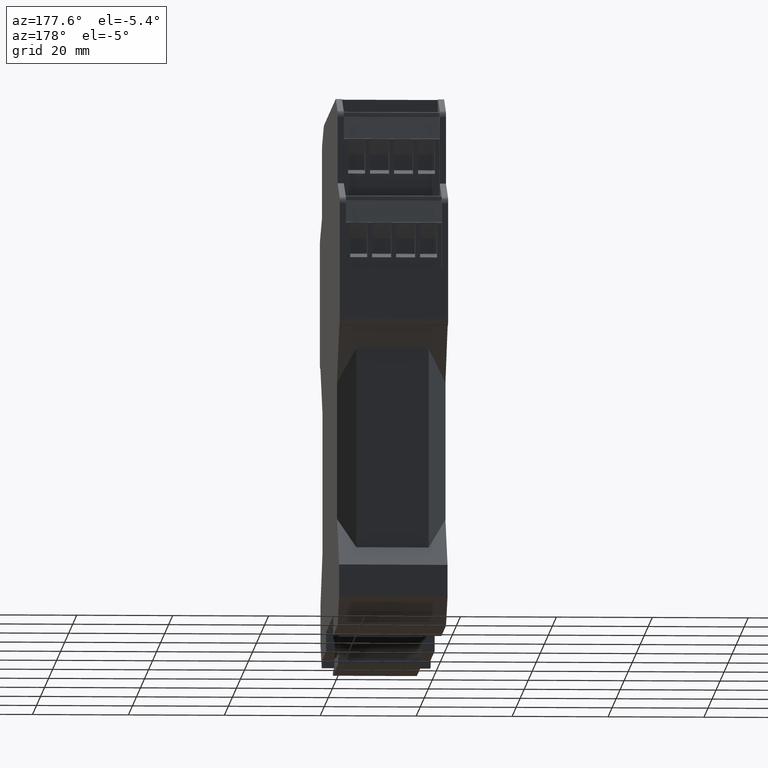
[diagram: clean part render]
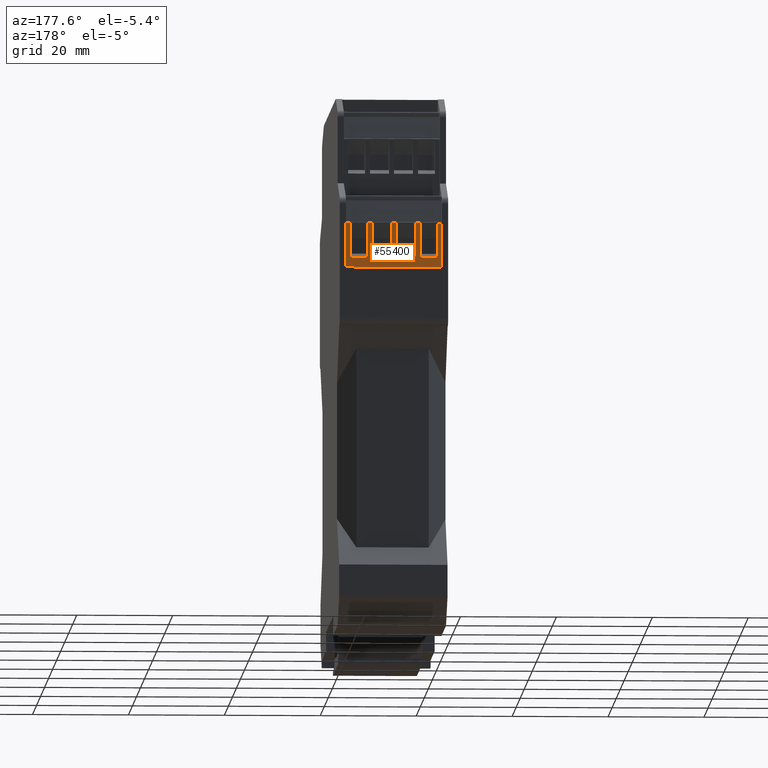
[diagram: same view with one face highlighted and labeled with its STEP entity id]
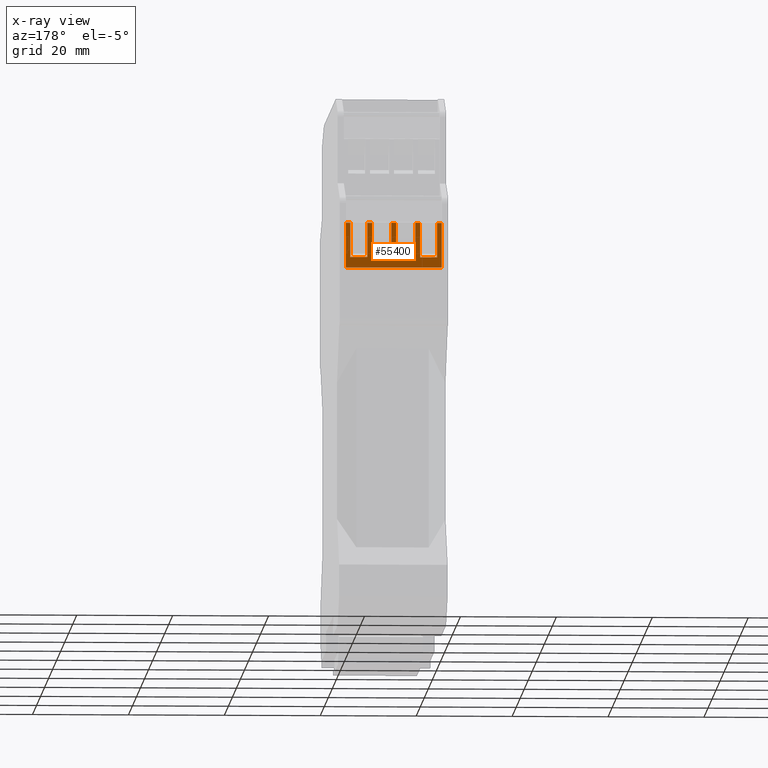
[diagram: x-ray of the same camera — body ghosted, the highlighted face saturated]
A machine part, auxiliary view. The second image highlights one B-rep face of the part: STEP entity #55400.
The next image is the same camera in x-ray: the body ghosted, the highlighted face saturated — about 0% of this face is hidden behind the body in this view.
In plain terms, the highlighted planar face has unit normal (0, 1, 0).
Its self-contained STEP definition (entity closure, byte-faithful):
#40510=CARTESIAN_POINT('',(48.1499981249996,70.0000000000634,
1.3000000000003));
#40520=VERTEX_POINT('',#40510);
#40550=CARTESIAN_POINT('',(48.1499981249996,-7.99999999993773,
1.3000000000003));
#40560=DIRECTION('',(0.,-1.,-0.));
#40570=VECTOR('',#40560,1.);
#40580=LINE('',#40550,#40570);
#40590=CARTESIAN_POINT('',(48.1499981249996,79.3499919592729,
1.3000000000003));
#40600=VERTEX_POINT('',#40590);
#40610=EDGE_CURVE('',#40600,#40520,#40580,.T.);
#42040=CARTESIAN_POINT('',(48.1499981249996,79.3499919592729,
21.3000000000003));
#42050=VERTEX_POINT('',#42040);
#42080=CARTESIAN_POINT('',(48.1499981249996,-7.99999999993773,
21.3000000000003));
#42090=DIRECTION('',(0.,-1.,-0.));
#42100=VECTOR('',#42090,1.);
#42110=LINE('',#42080,#42100);
#42120=CARTESIAN_POINT('',(48.1499981249996,70.0000000000634,
21.3000000000003));
#42130=VERTEX_POINT('',#42120);
#42140=EDGE_CURVE('',#42050,#42130,#42110,.T.);
#52950=CARTESIAN_POINT('',(48.1499981249996,79.3499919592729,
21.2987820000001));
#52960=DIRECTION('',(0.,0.,-1.));
#52970=VECTOR('',#52960,1.);
#52980=LINE('',#52950,#52970);
#52990=CARTESIAN_POINT('',(48.1499981249996,79.3499919592729,
2.23992434480551));
#53000=VERTEX_POINT('',#52990);
#53010=EDGE_CURVE('',#53000,#40600,#52980,.T.);
#53250=CARTESIAN_POINT('',(48.1499981249996,79.3499919592729,
5.78621466776217));
#53260=VERTEX_POINT('',#53250);
#53290=CARTESIAN_POINT('',(48.1499981249996,79.3499919592729,
6.81134933223805));
#53300=VERTEX_POINT('',#53290);
#53310=EDGE_CURVE('',#53300,#53260,#52980,.T.);
#53550=CARTESIAN_POINT('',(48.1499981249996,79.3499919592729,
10.7862146677622));
#53560=VERTEX_POINT('',#53550);
#53590=CARTESIAN_POINT('',(48.1499981249996,79.3499919592729,
11.811349332238));
#53600=VERTEX_POINT('',#53590);
#53610=EDGE_CURVE('',#53600,#53560,#52980,.T.);
#53850=CARTESIAN_POINT('',(48.1499981249996,79.3499919592729,
15.7862146677622));
#53860=VERTEX_POINT('',#53850);
#53890=CARTESIAN_POINT('',(48.1499981249996,79.3499919592729,
16.811349332238));
#53900=VERTEX_POINT('',#53890);
#53910=EDGE_CURVE('',#53900,#53860,#52980,.T.);
#54150=CARTESIAN_POINT('',(48.1499981249996,79.3499919592729,
20.3576396551947));
#54160=VERTEX_POINT('',#54150);
#54190=EDGE_CURVE('',#42050,#54160,#52980,.T.);
#54320=CARTESIAN_POINT('',(48.1499981249996,70.1499919592727,
21.2987820000001));
#54330=DIRECTION('',(1.,0.,0.));
#54340=DIRECTION('',(0.,-1.,-0.));
#54350=AXIS2_PLACEMENT_3D('',#54320,#54330,#54340);
#54360=PLANE('',#54350);
#54370=CARTESIAN_POINT('',(48.1499981249996,72.1666460474129,
18.7987820000001));
#54380=DIRECTION('',(0.,0.,-1.));
#54390=VECTOR('',#54380,1.);
#54400=LINE('',#54370,#54390);
#54410=CARTESIAN_POINT('',(48.1499981249996,72.1666460474129,
5.78621466776217));
#54420=VERTEX_POINT('',#54410);
#54430=CARTESIAN_POINT('',(48.1499981249996,72.1666460474129,
2.23992434480551));
#54440=VERTEX_POINT('',#54430);
#54450=EDGE_CURVE('',#54420,#54440,#54400,.T.);
#54460=ORIENTED_EDGE('',*,*,#54450,.F.);
#54470=CARTESIAN_POINT('',(48.1499981249996,32.2373029728746,
2.23992434480551));
#54480=DIRECTION('',(0.,1.,0.));
#54490=VECTOR('',#54480,1.);
#54500=LINE('',#54470,#54490);
#54510=EDGE_CURVE('',#54440,#53000,#54500,.T.);
#54520=ORIENTED_EDGE('',*,*,#54510,.F.);
#54530=ORIENTED_EDGE('',*,*,#53010,.F.);
#54540=ORIENTED_EDGE('',*,*,#40610,.F.);
#54550=CARTESIAN_POINT('',(48.1499981249996,70.0000000000634,26.4));
#54560=DIRECTION('',(0.,0.,-1.));
#54570=VECTOR('',#54560,1.);
#54580=LINE('',#54550,#54570);
#54590=EDGE_CURVE('',#42130,#40520,#54580,.T.);
#54600=ORIENTED_EDGE('',*,*,#54590,.T.);
#54610=ORIENTED_EDGE('',*,*,#42140,.T.);
#54620=ORIENTED_EDGE('',*,*,#54190,.F.);
#54630=CARTESIAN_POINT('',(48.1499981249996,32.2373029728746,
20.3576396551947));
#54640=DIRECTION('',(0.,-1.,-0.));
#54650=VECTOR('',#54640,1.);
#54660=LINE('',#54630,#54650);
#54670=CARTESIAN_POINT('',(48.1499981249996,72.1666460474129,
20.3576396551947));
#54680=VERTEX_POINT('',#54670);
#54690=EDGE_CURVE('',#54160,#54680,#54660,.T.);
#54700=ORIENTED_EDGE('',*,*,#54690,.F.);
#54710=CARTESIAN_POINT('',(48.1499981249996,72.1666460474129,
18.7987820000001));
#54720=DIRECTION('',(0.,0.,-1.));
#54730=VECTOR('',#54720,1.);
#54740=LINE('',#54710,#54730);
#54750=CARTESIAN_POINT('',(48.1499981249996,72.1666460474129,
16.811349332238));
#54760=VERTEX_POINT('',#54750);
#54770=EDGE_CURVE('',#54680,#54760,#54740,.T.);
#54780=ORIENTED_EDGE('',*,*,#54770,.F.);
#54790=CARTESIAN_POINT('',(48.1499981249996,32.2373029728746,
16.811349332238));
#54800=DIRECTION('',(0.,1.,0.));
#54810=VECTOR('',#54800,1.);
#54820=LINE('',#54790,#54810);
#54830=EDGE_CURVE('',#54760,#53900,#54820,.T.);
#54840=ORIENTED_EDGE('',*,*,#54830,.F.);
#54850=ORIENTED_EDGE('',*,*,#53910,.F.);
#54860=CARTESIAN_POINT('',(48.1499981249996,32.2373029728746,
15.7862146677622));
#54870=DIRECTION('',(0.,-1.,-0.));
#54880=VECTOR('',#54870,1.);
#54890=LINE('',#54860,#54880);
#54900=CARTESIAN_POINT('',(48.1499981249996,72.1666460474129,
15.7862146677622));
#54910=VERTEX_POINT('',#54900);
#54920=EDGE_CURVE('',#53860,#54910,#54890,.T.);
#54930=ORIENTED_EDGE('',*,*,#54920,.F.);
#54940=CARTESIAN_POINT('',(48.1499981249996,72.1666460474129,
18.7987820000001));
#54950=DIRECTION('',(0.,0.,1.));
#54960=VECTOR('',#54950,1.);
#54970=LINE('',#54940,#54960);
#54980=CARTESIAN_POINT('',(48.1499981249996,72.1666460474129,
11.811349332238));
#54990=VERTEX_POINT('',#54980);
#55000=EDGE_CURVE('',#54990,#54910,#54970,.T.);
#55010=ORIENTED_EDGE('',*,*,#55000,.T.);
#55020=CARTESIAN_POINT('',(48.1499981249996,32.2373029728746,
11.811349332238));
#55030=DIRECTION('',(0.,-1.,-0.));
#55040=VECTOR('',#55030,1.);
#55050=LINE('',#55020,#55040);
#55060=EDGE_CURVE('',#53600,#54990,#55050,.T.);
#55070=ORIENTED_EDGE('',*,*,#55060,.T.);
#55080=ORIENTED_EDGE('',*,*,#53610,.F.);
#55090=CARTESIAN_POINT('',(48.1499981249996,32.2373029728746,
10.7862146677622));
#55100=DIRECTION('',(0.,-1.,-0.));
#55110=VECTOR('',#55100,1.);
#55120=LINE('',#55090,#55110);
#55130=CARTESIAN_POINT('',(48.1499981249996,72.1666460474129,
10.7862146677622));
#55140=VERTEX_POINT('',#55130);
#55150=EDGE_CURVE('',#53560,#55140,#55120,.T.);
#55160=ORIENTED_EDGE('',*,*,#55150,.F.);
#55170=CARTESIAN_POINT('',(48.1499981249996,72.1666460474129,
18.7987820000001));
#55180=DIRECTION('',(0.,0.,-1.));
#55190=VECTOR('',#55180,1.);
#55200=LINE('',#55170,#55190);
#55210=CARTESIAN_POINT('',(48.1499981249996,72.1666460474129,
6.81134933223805));
#55220=VERTEX_POINT('',#55210);
#55230=EDGE_CURVE('',#55140,#55220,#55200,.T.);
#55240=ORIENTED_EDGE('',*,*,#55230,.F.);
#55250=CARTESIAN_POINT('',(48.1499981249996,32.2373029728746,
6.81134933223805));
#55260=DIRECTION('',(0.,1.,0.));
#55270=VECTOR('',#55260,1.);
#55280=LINE('',#55250,#55270);
#55290=EDGE_CURVE('',#55220,#53300,#55280,.T.);
#55300=ORIENTED_EDGE('',*,*,#55290,.F.);
#55310=ORIENTED_EDGE('',*,*,#53310,.F.);
#55320=CARTESIAN_POINT('',(48.1499981249996,32.2373029728746,
5.78621466776217));
#55330=DIRECTION('',(0.,-1.,-0.));
#55340=VECTOR('',#55330,1.);
#55350=LINE('',#55320,#55340);
#55360=EDGE_CURVE('',#53260,#54420,#55350,.T.);
#55370=ORIENTED_EDGE('',*,*,#55360,.F.);
#55380=EDGE_LOOP('',(#55370,#55310,#55300,#55240,#55160,#55080,#55070,
#55010,#54930,#54850,#54840,#54780,#54700,#54620,#54610,#54600,#54540,
#54530,#54520,#54460));
#55390=FACE_OUTER_BOUND('',#55380,.T.);
#55400=ADVANCED_FACE('',(#55390),#54360,.T.);